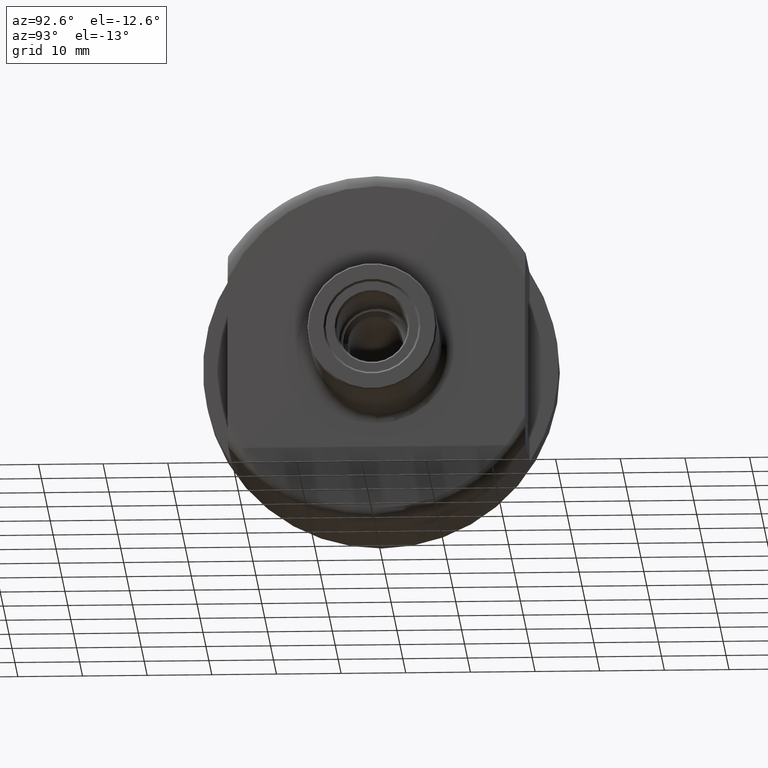
[diagram: clean part render]
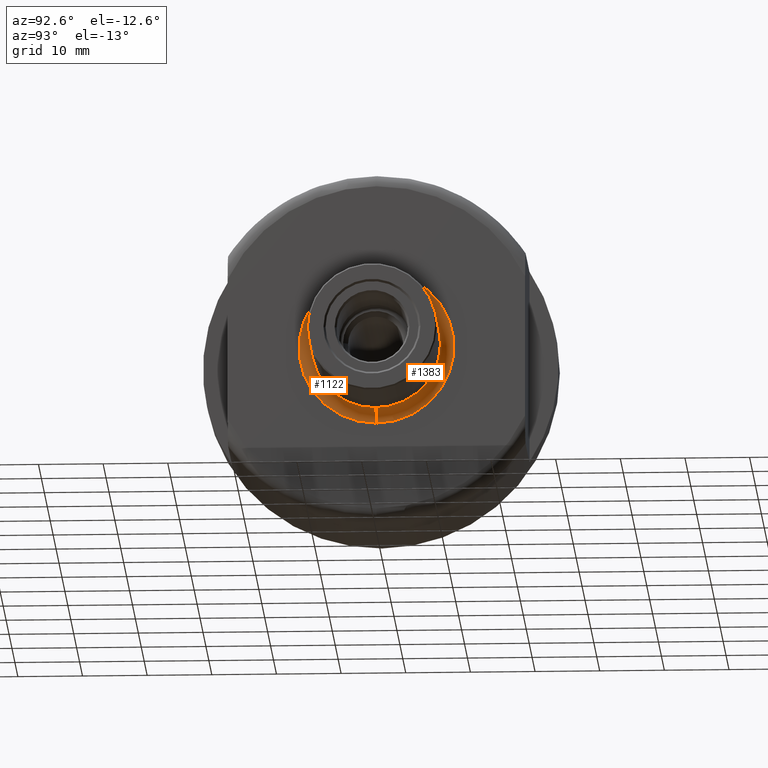
[diagram: same view with one multi-face feature highlighted, each face labeled with its STEP entity id]
A machine part, auxiliary view. The highlighted faces form ONE feature: a constant-radius fillet chain: 2 tangent blend faces with common blend radius 2 mm. The faces share edges in the B-rep.
Their STEP definitions:
[1] entity #1383 (Torus):
#9 = CARTESIAN_POINT ( 'NONE',  ( 22.00000000000000700, 4.486547181080169100E-015, 11.99999999999999600 ) ) ;
#34 = DIRECTION ( 'NONE',  ( 0.0000000000000000000, 1.224646799147354400E-016, 1.000000000000000000 ) ) ;
#56 = AXIS2_PLACEMENT_3D ( 'NONE', #430, #624, #638 ) ;
#77 = EDGE_CURVE ( 'NONE', #1606, #1182, #981, .T. ) ;
#103 = CIRCLE ( 'NONE', #56, 9.999999999999996400 ) ;
#108 = EDGE_CURVE ( 'NONE', #2092, #1351, #1154, .T. ) ;
#126 = CARTESIAN_POINT ( 'NONE',  ( 22.00000000000000700, 3.016971022103345400E-015, -11.99999999999999600 ) ) ;
#129 = DIRECTION ( 'NONE',  ( -0.0000000000000000000, -1.000000000000000000, -0.0000000000000000000 ) ) ;
#135 = DIRECTION ( 'NONE',  ( 0.0000000000000000000, 0.0000000000000000000, -1.000000000000000000 ) ) ;
#144 = CIRCLE ( 'NONE', #1233, 11.99999999999999600 ) ;
#194 = CARTESIAN_POINT ( 'NONE',  ( 20.00000000000000400, 4.486547181080169100E-015, 11.99999999999999600 ) ) ;
#203 = CIRCLE ( 'NONE', #1641, 2.000000000000000000 ) ;
#242 = TOROIDAL_SURFACE ( 'NONE', #1581, 11.99999999999999600, 2.000000000000000000 ) ;
#260 = FACE_OUTER_BOUND ( 'NONE', #1800, .T. ) ;
#300 = DIRECTION ( 'NONE',  ( 0.0000000000000000000, 1.000000000000000000, -1.224646799147353200E-016 ) ) ;
#430 = CARTESIAN_POINT ( 'NONE',  ( 22.00000000000000700, 3.016971022103345400E-015, 0.0000000000000000000 ) ) ;
#443 = DIRECTION ( 'NONE',  ( 0.0000000000000000000, 0.0000000000000000000, -1.000000000000000000 ) ) ;
#490 = DIRECTION ( 'NONE',  ( 1.000000000000000000, -0.0000000000000000000, -0.0000000000000000000 ) ) ;
#518 = CARTESIAN_POINT ( 'NONE',  ( 22.00000000000000700, 3.016971022103345400E-015, 0.0000000000000000000 ) ) ;
#520 = DIRECTION ( 'NONE',  ( -1.000000000000000000, 0.0000000000000000000, 0.0000000000000000000 ) ) ;
#624 = DIRECTION ( 'NONE',  ( 1.000000000000000000, -0.0000000000000000000, -0.0000000000000000000 ) ) ;
#638 = DIRECTION ( 'NONE',  ( 0.0000000000000000000, 0.0000000000000000000, -1.000000000000000000 ) ) ;
#686 = CARTESIAN_POINT ( 'NONE',  ( 20.00000000000000400, 3.016971022103345400E-015, 0.0000000000000000000 ) ) ;
#719 = CARTESIAN_POINT ( 'NONE',  ( 22.00000000000000700, 10.00000000000000000, 0.0000000000000000000 ) ) ;
#745 = CARTESIAN_POINT ( 'NONE',  ( 22.00000000000000700, 4.364082501165434000E-015, 9.999999999999996400 ) ) ;
#823 = CARTESIAN_POINT ( 'NONE',  ( 20.00000000000000400, 3.016971022103345400E-015, -11.99999999999999600 ) ) ;
#981 = CIRCLE ( 'NONE', #2031, 2.000000000000000000 ) ;
#1050 = DIRECTION ( 'NONE',  ( 0.0000000000000000000, 0.0000000000000000000, -1.000000000000000000 ) ) ;
#1116 = CARTESIAN_POINT ( 'NONE',  ( 22.00000000000000700, 3.016971022103345400E-015, 0.0000000000000000000 ) ) ;
#1135 = DIRECTION ( 'NONE',  ( 1.000000000000000000, -0.0000000000000000000, -0.0000000000000000000 ) ) ;
#1154 = CIRCLE ( 'NONE', #2022, 9.999999999999996400 ) ;
#1161 = CARTESIAN_POINT ( 'NONE',  ( 22.00000000000000700, 3.016971022103345400E-015, -9.999999999999996400 ) ) ;
#1182 = VERTEX_POINT ( 'NONE', #823 ) ;
#1208 = DIRECTION ( 'NONE',  ( 0.0000000000000000000, 0.0000000000000000000, -1.000000000000000000 ) ) ;
#1233 = AXIS2_PLACEMENT_3D ( 'NONE', #686, #520, #1050 ) ;
#1351 = VERTEX_POINT ( 'NONE', #745 ) ;
#1383 = ADVANCED_FACE ( 'NONE', ( #260 ), #242, .F. ) ;
#1457 = EDGE_CURVE ( 'NONE', #1351, #2077, #203, .T. ) ;
#1468 = EDGE_CURVE ( 'NONE', #2077, #1182, #144, .T. ) ;
#1581 = AXIS2_PLACEMENT_3D ( 'NONE', #1116, #1135, #1208 ) ;
#1606 = VERTEX_POINT ( 'NONE', #1161 ) ;
#1641 = AXIS2_PLACEMENT_3D ( 'NONE', #9, #300, #34 ) ;
#1646 = ORIENTED_EDGE ( 'NONE', *, *, #1468, .F. ) ;
#1649 = ORIENTED_EDGE ( 'NONE', *, *, #77, .T. ) ;
#1650 = ORIENTED_EDGE ( 'NONE', *, *, #1896, .F. ) ;
#1652 = ORIENTED_EDGE ( 'NONE', *, *, #108, .F. ) ;
#1653 = ORIENTED_EDGE ( 'NONE', *, *, #1457, .F. ) ;
#1800 = EDGE_LOOP ( 'NONE', ( #1653, #1652, #1650, #1649, #1646 ) ) ;
#1896 = EDGE_CURVE ( 'NONE', #1606, #2092, #103, .T. ) ;
#2022 = AXIS2_PLACEMENT_3D ( 'NONE', #518, #490, #443 ) ;
#2031 = AXIS2_PLACEMENT_3D ( 'NONE', #126, #129, #135 ) ;
#2077 = VERTEX_POINT ( 'NONE', #194 ) ;
#2092 = VERTEX_POINT ( 'NONE', #719 ) ;
[2] entity #1122 (Torus):
#9 = CARTESIAN_POINT ( 'NONE',  ( 22.00000000000000700, 4.486547181080169100E-015, 11.99999999999999600 ) ) ;
#34 = DIRECTION ( 'NONE',  ( 0.0000000000000000000, 1.224646799147354400E-016, 1.000000000000000000 ) ) ;
#77 = EDGE_CURVE ( 'NONE', #1606, #1182, #981, .T. ) ;
#83 = CARTESIAN_POINT ( 'NONE',  ( 22.00000000000000700, 3.016971022103345400E-015, 0.0000000000000000000 ) ) ;
#85 = DIRECTION ( 'NONE',  ( 0.0000000000000000000, 0.0000000000000000000, -1.000000000000000000 ) ) ;
#95 = CARTESIAN_POINT ( 'NONE',  ( 22.00000000000000700, 3.016971022103345400E-015, 0.0000000000000000000 ) ) ;
#116 = DIRECTION ( 'NONE',  ( 1.000000000000000000, -0.0000000000000000000, -0.0000000000000000000 ) ) ;
#120 = DIRECTION ( 'NONE',  ( 0.0000000000000000000, 0.0000000000000000000, -1.000000000000000000 ) ) ;
#126 = CARTESIAN_POINT ( 'NONE',  ( 22.00000000000000700, 3.016971022103345400E-015, -11.99999999999999600 ) ) ;
#129 = DIRECTION ( 'NONE',  ( -0.0000000000000000000, -1.000000000000000000, -0.0000000000000000000 ) ) ;
#135 = DIRECTION ( 'NONE',  ( 0.0000000000000000000, 0.0000000000000000000, -1.000000000000000000 ) ) ;
#194 = CARTESIAN_POINT ( 'NONE',  ( 20.00000000000000400, 4.486547181080169100E-015, 11.99999999999999600 ) ) ;
#203 = CIRCLE ( 'NONE', #1641, 2.000000000000000000 ) ;
#300 = DIRECTION ( 'NONE',  ( 0.0000000000000000000, 1.000000000000000000, -1.224646799147353200E-016 ) ) ;
#309 = CIRCLE ( 'NONE', #1026, 9.999999999999996400 ) ;
#370 = AXIS2_PLACEMENT_3D ( 'NONE', #83, #467, #85 ) ;
#456 = DIRECTION ( 'NONE',  ( 1.000000000000000000, -0.0000000000000000000, -0.0000000000000000000 ) ) ;
#462 = CIRCLE ( 'NONE', #1541, 11.99999999999999600 ) ;
#467 = DIRECTION ( 'NONE',  ( 1.000000000000000000, -0.0000000000000000000, -0.0000000000000000000 ) ) ;
#506 = FACE_OUTER_BOUND ( 'NONE', #1078, .T. ) ;
#516 = TOROIDAL_SURFACE ( 'NONE', #1686, 11.99999999999999600, 2.000000000000000000 ) ;
#525 = CARTESIAN_POINT ( 'NONE',  ( 22.00000000000000700, 3.016971022103345400E-015, 0.0000000000000000000 ) ) ;
#599 = CARTESIAN_POINT ( 'NONE',  ( 20.00000000000000400, 3.016971022103345400E-015, 0.0000000000000000000 ) ) ;
#601 = DIRECTION ( 'NONE',  ( -1.000000000000000000, 0.0000000000000000000, 0.0000000000000000000 ) ) ;
#611 = DIRECTION ( 'NONE',  ( 0.0000000000000000000, 0.0000000000000000000, -1.000000000000000000 ) ) ;
#711 = CIRCLE ( 'NONE', #370, 9.999999999999996400 ) ;
#745 = CARTESIAN_POINT ( 'NONE',  ( 22.00000000000000700, 4.364082501165434000E-015, 9.999999999999996400 ) ) ;
#813 = EDGE_CURVE ( 'NONE', #1351, #2067, #711, .T. ) ;
#823 = CARTESIAN_POINT ( 'NONE',  ( 20.00000000000000400, 3.016971022103345400E-015, -11.99999999999999600 ) ) ;
#953 = CARTESIAN_POINT ( 'NONE',  ( 22.00000000000000700, -9.999999999999992900, 1.224646799147353100E-015 ) ) ;
#981 = CIRCLE ( 'NONE', #2031, 2.000000000000000000 ) ;
#1026 = AXIS2_PLACEMENT_3D ( 'NONE', #525, #456, #1822 ) ;
#1078 = EDGE_LOOP ( 'NONE', ( #1887, #1334, #1919, #1612, #1523 ) ) ;
#1122 = ADVANCED_FACE ( 'NONE', ( #506 ), #516, .F. ) ;
#1161 = CARTESIAN_POINT ( 'NONE',  ( 22.00000000000000700, 3.016971022103345400E-015, -9.999999999999996400 ) ) ;
#1163 = EDGE_CURVE ( 'NONE', #1182, #2077, #462, .T. ) ;
#1182 = VERTEX_POINT ( 'NONE', #823 ) ;
#1311 = EDGE_CURVE ( 'NONE', #2067, #1606, #309, .T. ) ;
#1334 = ORIENTED_EDGE ( 'NONE', *, *, #1457, .T. ) ;
#1351 = VERTEX_POINT ( 'NONE', #745 ) ;
#1457 = EDGE_CURVE ( 'NONE', #1351, #2077, #203, .T. ) ;
#1523 = ORIENTED_EDGE ( 'NONE', *, *, #1311, .F. ) ;
#1541 = AXIS2_PLACEMENT_3D ( 'NONE', #599, #601, #611 ) ;
#1606 = VERTEX_POINT ( 'NONE', #1161 ) ;
#1612 = ORIENTED_EDGE ( 'NONE', *, *, #77, .F. ) ;
#1641 = AXIS2_PLACEMENT_3D ( 'NONE', #9, #300, #34 ) ;
#1686 = AXIS2_PLACEMENT_3D ( 'NONE', #95, #116, #120 ) ;
#1822 = DIRECTION ( 'NONE',  ( 0.0000000000000000000, 0.0000000000000000000, -1.000000000000000000 ) ) ;
#1887 = ORIENTED_EDGE ( 'NONE', *, *, #813, .F. ) ;
#1919 = ORIENTED_EDGE ( 'NONE', *, *, #1163, .F. ) ;
#2031 = AXIS2_PLACEMENT_3D ( 'NONE', #126, #129, #135 ) ;
#2067 = VERTEX_POINT ( 'NONE', #953 ) ;
#2077 = VERTEX_POINT ( 'NONE', #194 ) ;